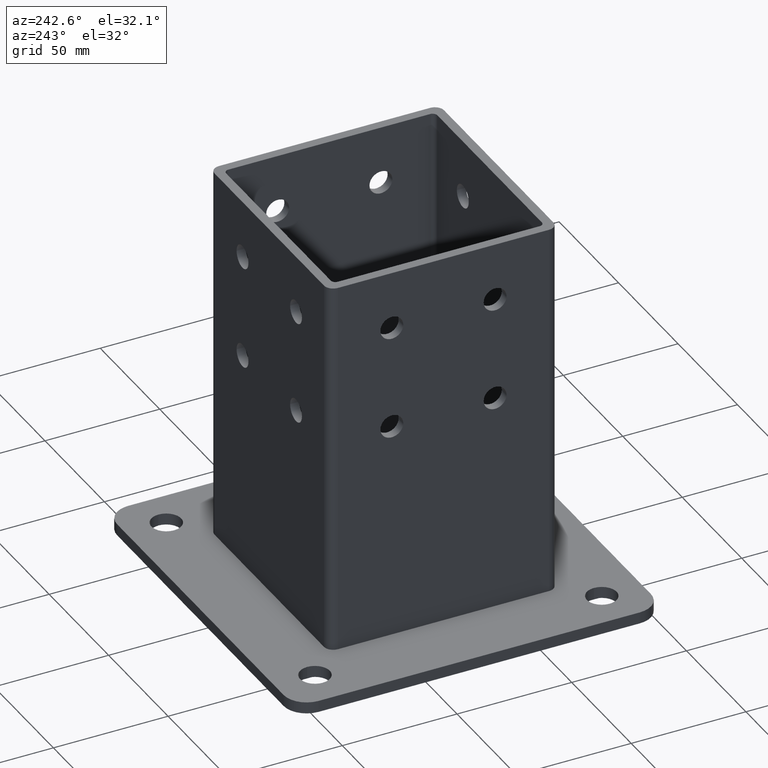
[diagram: clean part render]
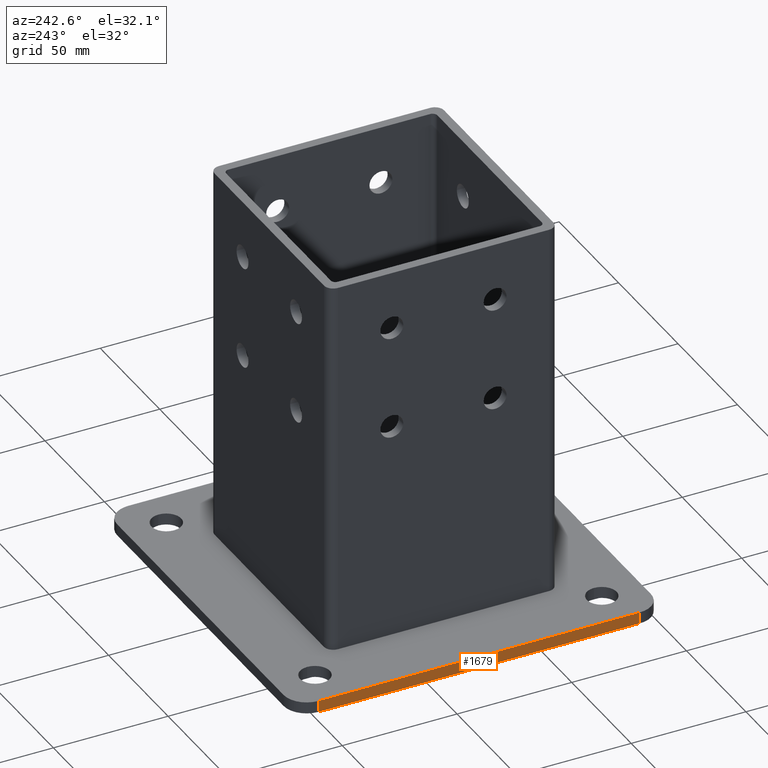
[diagram: same view with one face highlighted and labeled with its STEP entity id]
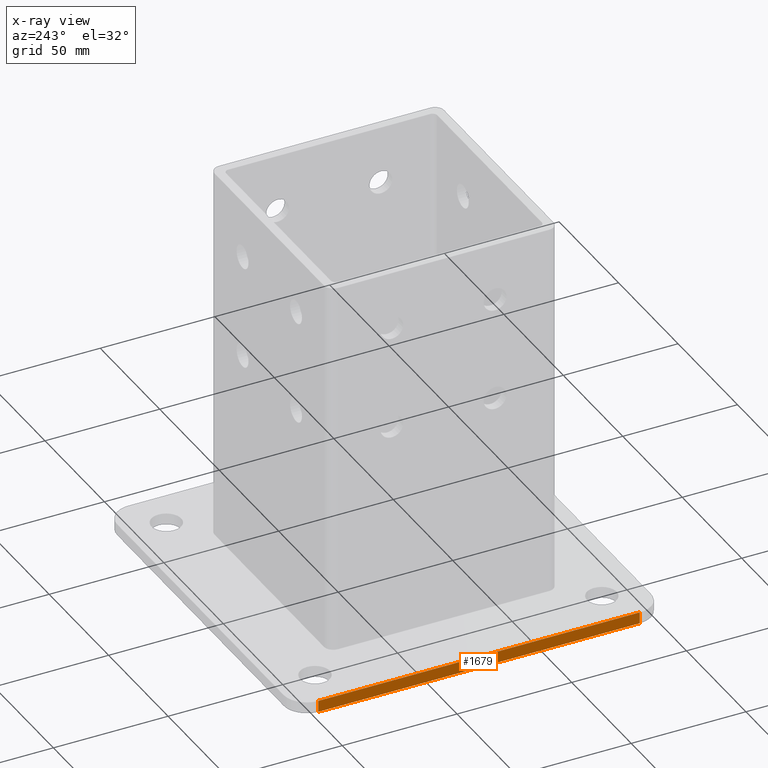
[diagram: x-ray of the same camera — body ghosted, the highlighted face saturated]
A machine part, auxiliary view. The second image highlights one B-rep face of the part: STEP entity #1679.
The next image is the same camera in x-ray: the body ghosted, the highlighted face saturated — about 0% of this face is hidden behind the body in this view.
In plain terms, the highlighted planar face has unit normal (1, -0, 0).
Its self-contained STEP definition (entity closure, byte-faithful):
#1622=CARTESIAN_POINT('',(-79.999978941975868,150.000011230174150,0.0));
#1623=VERTEX_POINT('',#1622);
#1631=CARTESIAN_POINT('',(-79.999978941975868,150.000011230174150,5.0));
#1632=VERTEX_POINT('',#1631);
#1633=CARTESIAN_POINT('',(-79.999978941975868,150.000011230174150,5.0));
#1634=DIRECTION('',(0.0,0.0,-1.0));
#1635=VECTOR('',#1634,5.0);
#1636=LINE('',#1633,#1635);
#1637=EDGE_CURVE('',#1632,#1623,#1636,.T.);
#1649=CARTESIAN_POINT('',(-79.999978941975868,150.000011230174150,5.0));
#1650=DIRECTION('',(0.999999999999990,-0.000000140384690,0.0));
#1651=DIRECTION('',(-0.000000140384690,-0.999999999999990,0.0));
#1652=AXIS2_PLACEMENT_3D('',#1649,#1650,#1651);
#1653=PLANE('',#1652);
#1654=ORIENTED_EDGE('',*,*,#1637,.T.);
#1655=CARTESIAN_POINT('',(-79.999998595832523,10.000011230735296,0.0));
#1656=VERTEX_POINT('',#1655);
#1657=CARTESIAN_POINT('',(-79.999978941975868,150.000011230174150,0.0));
#1658=DIRECTION('',(-0.000000140384690,-0.999999999999990,0.0));
#1659=VECTOR('',#1658,139.999999999440040);
#1660=LINE('',#1657,#1659);
#1661=EDGE_CURVE('',#1623,#1656,#1660,.T.);
#1662=ORIENTED_EDGE('',*,*,#1661,.T.);
#1663=CARTESIAN_POINT('',(-79.999998595832523,10.000011230735296,5.0));
#1664=VERTEX_POINT('',#1663);
#1665=CARTESIAN_POINT('',(-79.999998595832523,10.000011230735296,5.0));
#1666=DIRECTION('',(0.0,0.0,-1.0));
#1667=VECTOR('',#1666,5.0);
#1668=LINE('',#1665,#1667);
#1669=EDGE_CURVE('',#1664,#1656,#1668,.T.);
#1670=ORIENTED_EDGE('',*,*,#1669,.F.);
#1671=CARTESIAN_POINT('',(-79.999978941975868,150.000011230174150,5.0));
#1672=DIRECTION('',(-0.000000140384690,-0.999999999999990,0.0));
#1673=VECTOR('',#1672,139.999999999440040);
#1674=LINE('',#1671,#1673);
#1675=EDGE_CURVE('',#1632,#1664,#1674,.T.);
#1676=ORIENTED_EDGE('',*,*,#1675,.F.);
#1677=EDGE_LOOP('',(#1654,#1662,#1670,#1676));
#1678=FACE_OUTER_BOUND('',#1677,.T.);
#1679=ADVANCED_FACE('',(#1678),#1653,.F.);